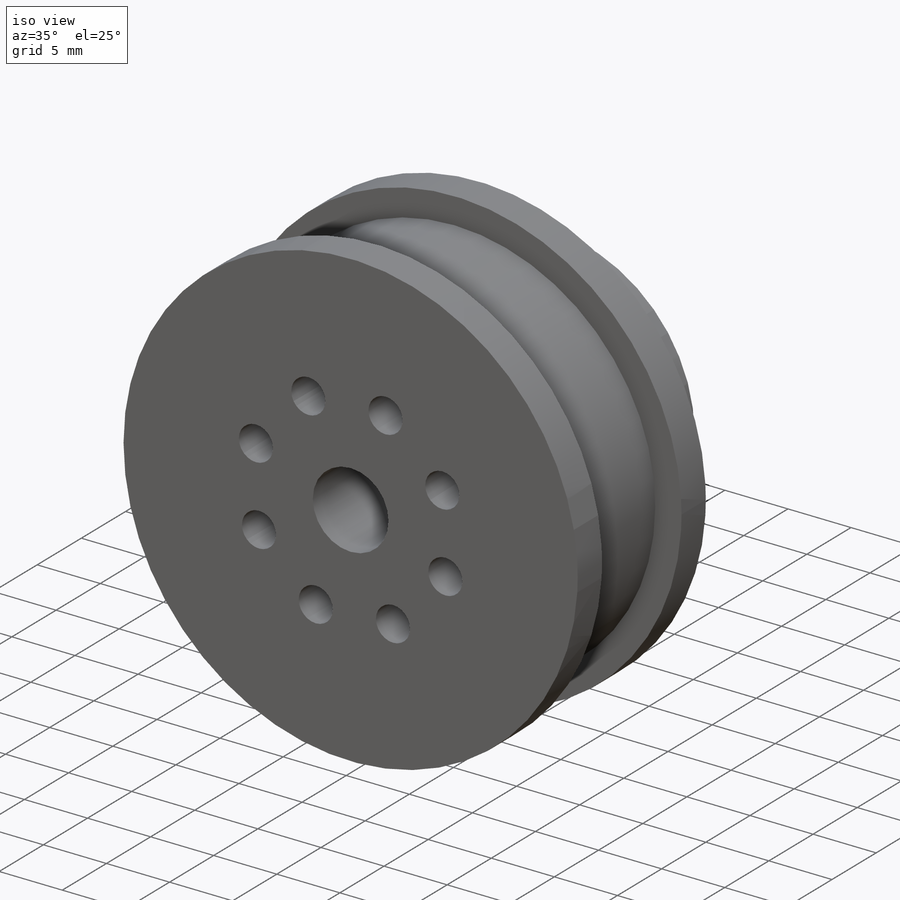
[diagram: iso view]
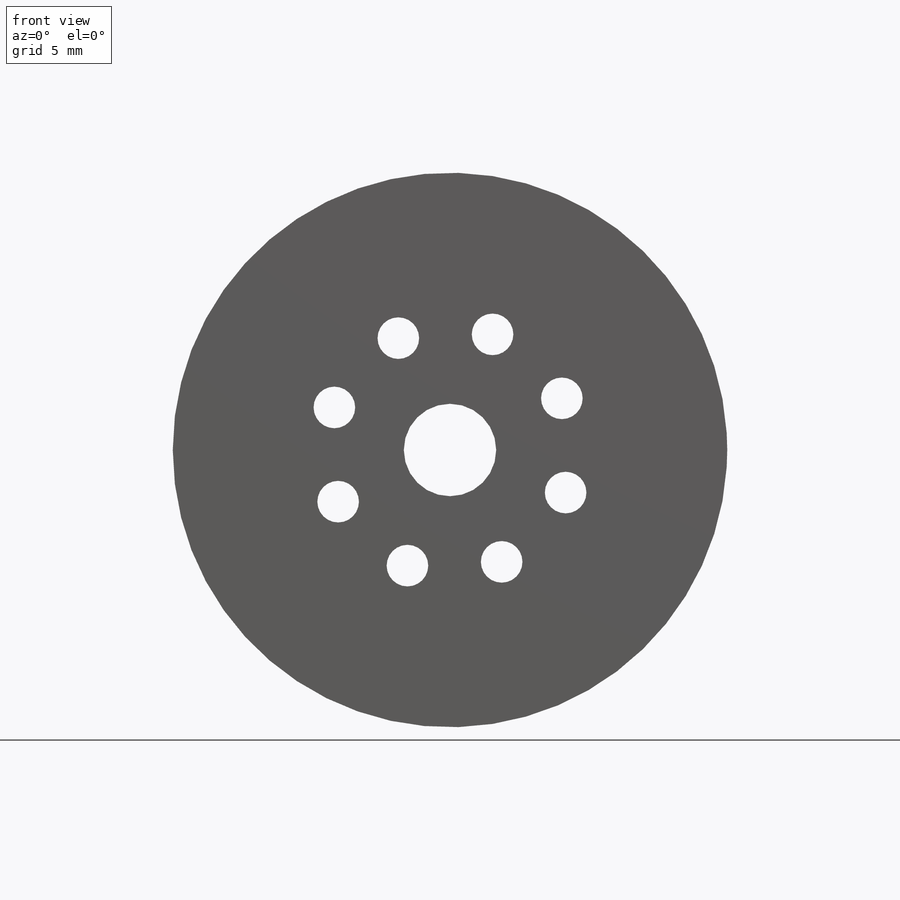
[diagram: front view]
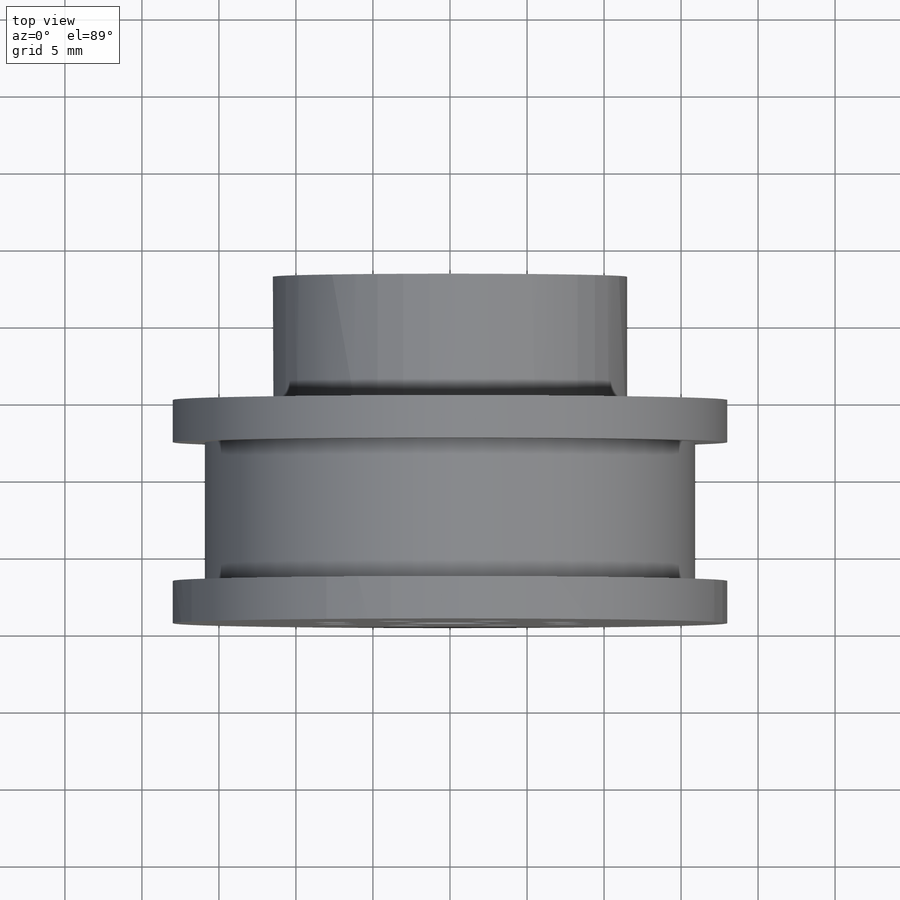
[diagram: top view]
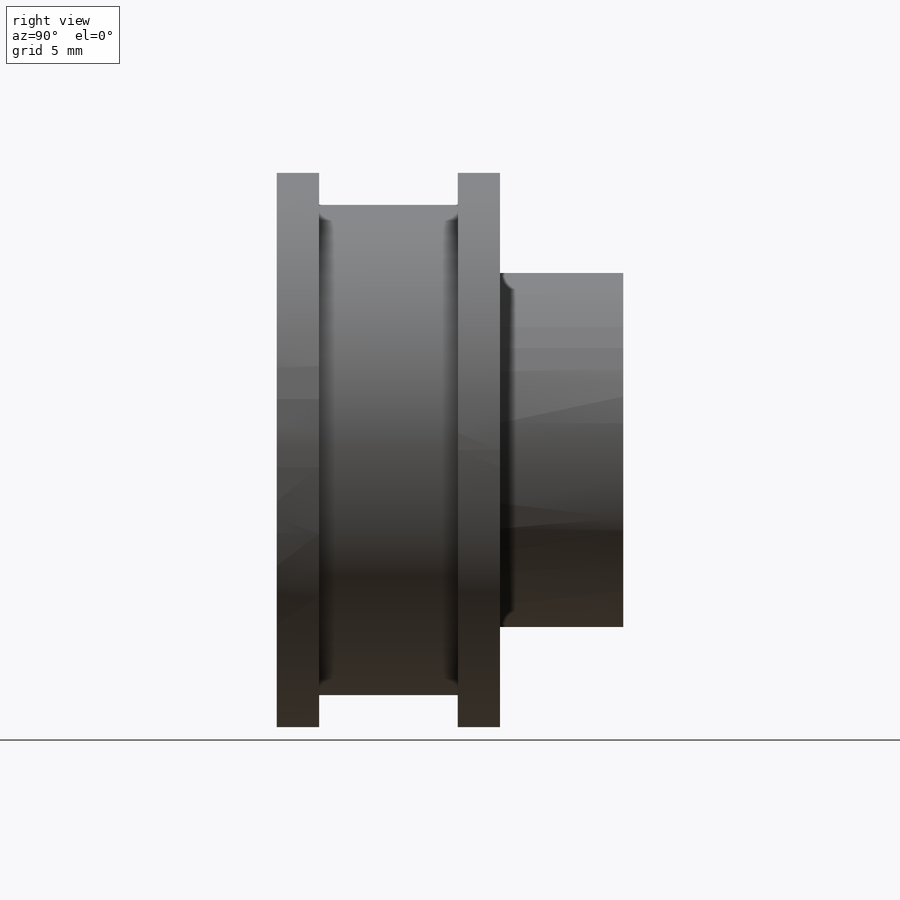
[diagram: right view]
SOLIDWORKS PART (.sldprt)
format: sldprt  version: not decoded by parser v0  size: 221,184 bytes
history: native  units: mm
features: sketch x7, extrude x4, plane x3, cut_extrude x3, material x1, pattern_circular x1 (+10 scaffold rows collapsed)
feature tree (29):
  scaffold x10  (default folders/planes/origin — collapsed)
  material  "Matériau <non spécifié>"
  plane  "Plan de face"
  plane  "Plan de dessus"
  plane  "Plan de droite"
  sketch  "Esquisse1"  dims[D1=36.0mm]
  extrude  "Boss.-Extru.2"  Depth=2.75mm
  sketch  "Esquisse2"  dims[D1=31.83mm]
  extrude  "Boss.-Extru.3"  Depth=9mm
  sketch  "Esquisse3"  dims[D1=36.0mm]
  extrude  "Boss.-Extru.4"  Depth=2.75mm
  sketch  "Esquisse4"  dims[D1=23.0mm]
  extrude  "Boss.-Extru.5"  Depth=8mm
  sketch  "Esquisse5"  dims[D1=6.0mm]
  cut_extrude  "Enlèv. mat.-Extru.1"  [1 undecoded]
  sketch  "Esquisse6"  dims[D1=8.0mm]
  cut_extrude  "Enlèv. mat.-Extru.2"  Depth=10mm
  sketch  "Esquisse7"  dims[D2=2.7mm D1=8.0mm]
  cut_extrude  "Enlèv. mat.-Extru.3"  [1 undecoded]
  pattern_circular  "Répétition circulaire1"  Count=8 Angle=45deg
decode coverage: 13 of 15 modeling features carry decoded parameters
note: 2 parameter values undecoded
note: suppression state not decoded; provenance and decode notes live in map.json
